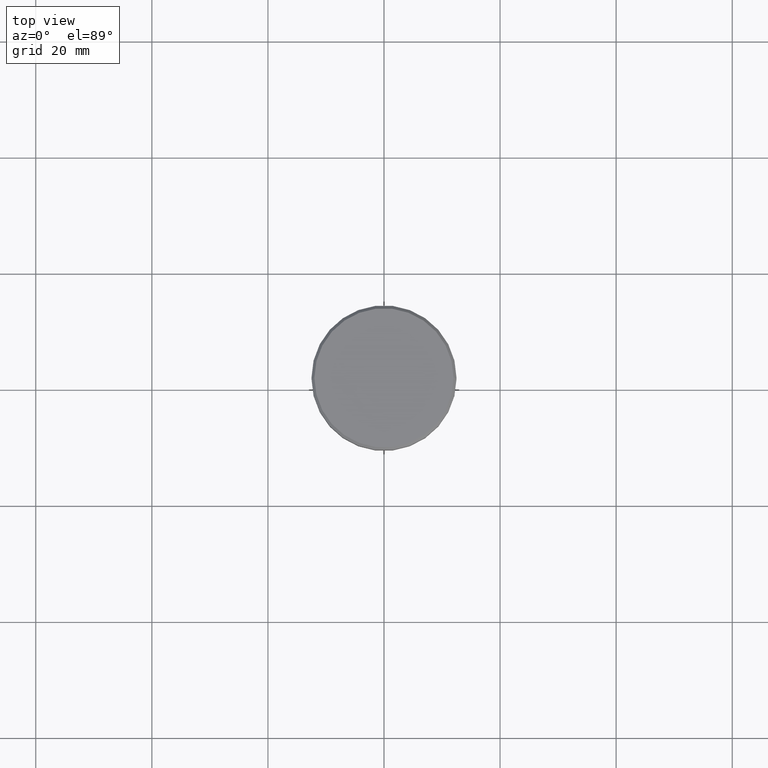
[diagram: clean part render]
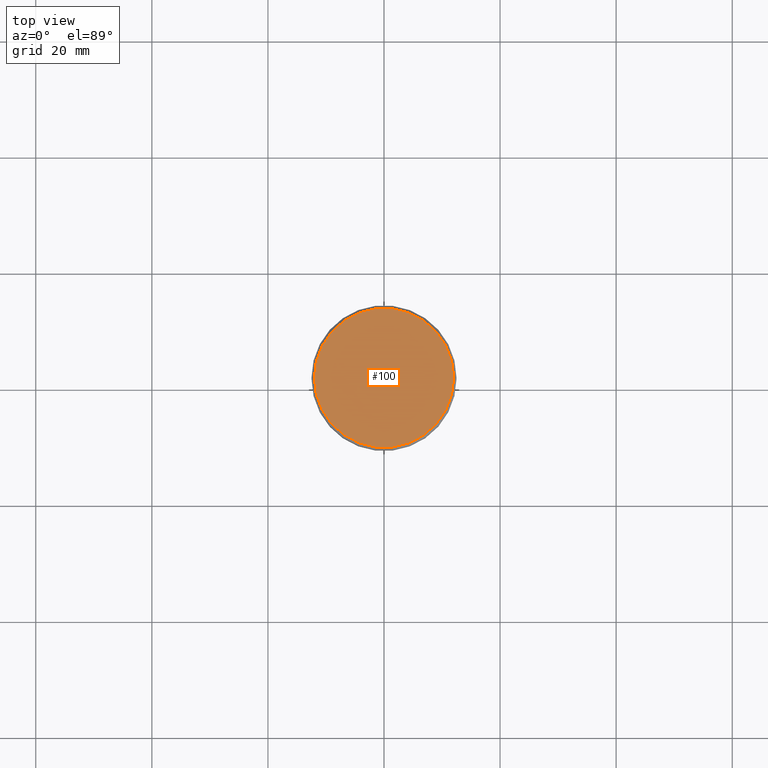
[diagram: same view with one face highlighted and labeled with its STEP entity id]
A machine part, top view. The second image highlights one B-rep face of the part: STEP entity #100.
In plain terms, the highlighted planar face has unit normal (0, -0, 1).
Its self-contained STEP definition (entity closure, byte-faithful):
#19 = EDGE_CURVE ( 'NONE', #281, #334, #695, .T. ) ;
#61 = ORIENTED_EDGE ( 'NONE', *, *, #350, .T. ) ;
#100 = ADVANCED_FACE ( 'NONE', ( #129 ), #1140, .T. ) ;
#129 = FACE_OUTER_BOUND ( 'NONE', #1070, .T. ) ;
#147 = DIRECTION ( 'NONE',  ( 1.000000000000000000, 0.000000000000000000, 0.000000000000000000 ) ) ;
#216 = CARTESIAN_POINT ( 'NONE',  ( 0.000000000000000000, 0.000000000000000000, 0.000000000000000000 ) ) ;
#244 = DIRECTION ( 'NONE',  ( -0.000000000000000000, -0.000000000000000000, 1.000000000000000000 ) ) ;
#281 = VERTEX_POINT ( 'NONE', #450 ) ;
#291 = DIRECTION ( 'NONE',  ( -0.000000000000000000, -0.000000000000000000, 1.000000000000000000 ) ) ;
#334 = VERTEX_POINT ( 'NONE', #654 ) ;
#350 = EDGE_CURVE ( 'NONE', #334, #281, #922, .T. ) ;
#373 = CARTESIAN_POINT ( 'NONE',  ( 0.000000000000000000, 0.000000000000000000, 0.000000000000000000 ) ) ;
#450 = CARTESIAN_POINT ( 'NONE',  ( -12.00000000000002487, 0.000000000000000000, 0.000000000000000000 ) ) ;
#546 = DIRECTION ( 'NONE',  ( 1.000000000000000000, 0.000000000000000000, 0.000000000000000000 ) ) ;
#654 = CARTESIAN_POINT ( 'NONE',  ( 12.00000000000002487, 1.500192328955509115E-15, 0.000000000000000000 ) ) ;
#695 = CIRCLE ( 'NONE', #851, 12.00000000000002487 ) ;
#741 = AXIS2_PLACEMENT_3D ( 'NONE', #955, #244, #782 ) ;
#782 = DIRECTION ( 'NONE',  ( 1.000000000000000000, 0.000000000000000000, 0.000000000000000000 ) ) ;
#820 = AXIS2_PLACEMENT_3D ( 'NONE', #216, #1043, #147 ) ;
#851 = AXIS2_PLACEMENT_3D ( 'NONE', #373, #291, #546 ) ;
#922 = CIRCLE ( 'NONE', #741, 12.00000000000002487 ) ;
#955 = CARTESIAN_POINT ( 'NONE',  ( 0.000000000000000000, 0.000000000000000000, 0.000000000000000000 ) ) ;
#1043 = DIRECTION ( 'NONE',  ( 0.000000000000000000, -0.000000000000000000, 1.000000000000000000 ) ) ;
#1070 = EDGE_LOOP ( 'NONE', ( #1117, #61 ) ) ;
#1117 = ORIENTED_EDGE ( 'NONE', *, *, #19, .T. ) ;
#1140 = PLANE ( 'NONE',  #820 ) ;